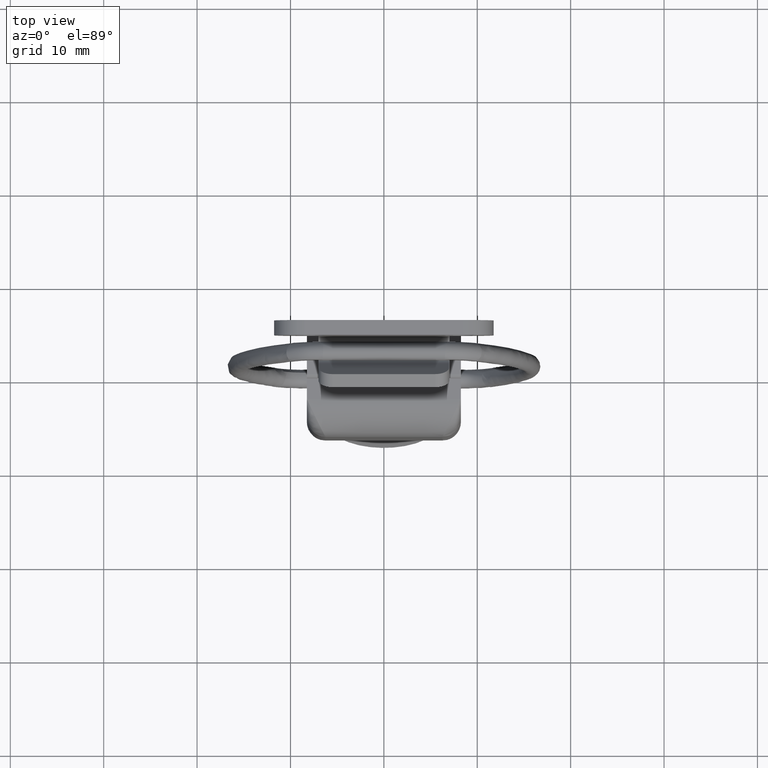
[diagram: clean part render]
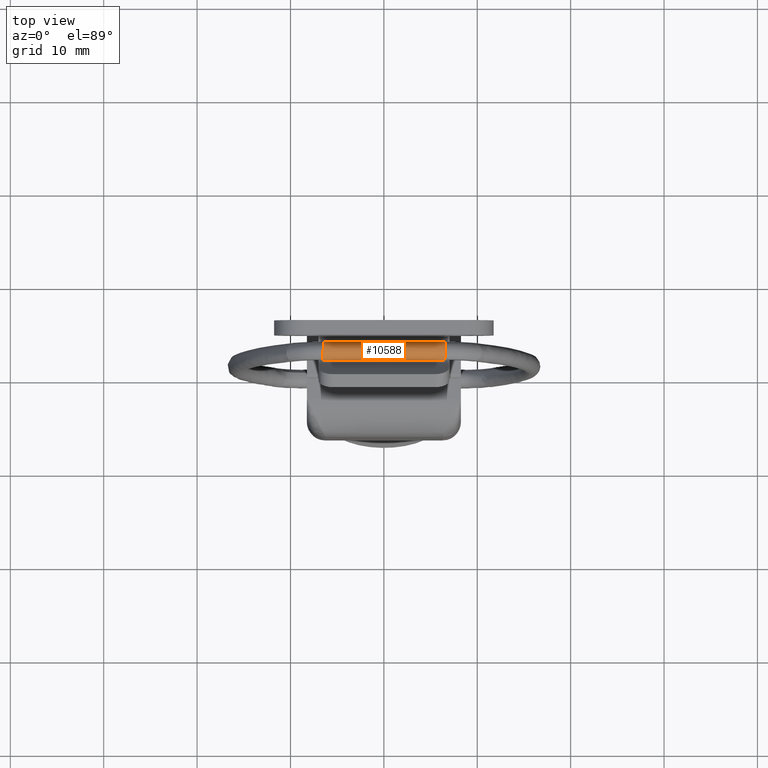
[diagram: same view with one face highlighted and labeled with its STEP entity id]
A machine part, top view. The second image highlights one B-rep face of the part: STEP entity #10588.
In plain terms, the highlighted face is a freeform B-spline surface patch.
Its self-contained STEP definition (entity closure, byte-faithful):
#10235=CARTESIAN_POINT('',(-6.553703238216057,1.526267808194171,36.312757689172088));
#10236=VERTEX_POINT('',#10235);
#10244=CARTESIAN_POINT('',(-6.445570692218129,3.390552194198468,35.645398781179949));
#10245=VERTEX_POINT('',#10244);
#10246=CARTESIAN_POINT('',(-6.553703238216057,1.526267808194171,36.312757689172088));
#10247=CARTESIAN_POINT('',(-6.550683797736747,1.592633670253155,36.432042125222843));
#10248=CARTESIAN_POINT('',(-6.546211833409953,1.683539665240021,36.537519009879702));
#10249=CARTESIAN_POINT('',(-6.529620459968619,2.004663524047265,36.773223679049849));
#10250=CARTESIAN_POINT('',(-6.514614076888280,2.279281060557900,36.833835263691242));
#10251=CARTESIAN_POINT('',(-6.485231205158300,2.795265156415775,36.743117991943393));
#10252=CARTESIAN_POINT('',(-6.471179081154260,3.031245107303830,36.595773516590647));
#10253=CARTESIAN_POINT('',(-6.451121509023050,3.346276131130635,36.175332931306500));
#10254=CARTESIAN_POINT('',(-6.445345472882390,3.421682590761250,35.906646717700447));
#10255=CARTESIAN_POINT('',(-6.445570692218129,3.390552194198468,35.645398781179949));
#10256=B_SPLINE_CURVE_WITH_KNOTS('',3,(#10246,#10247,#10248,#10249,#10250,#10251,#10252,#10253,#10254,#10255),.UNSPECIFIED.,.F.,.U.,(4,2,2,2,4),(0.560000082227091,0.625000000000000,0.750000000000000,0.875000000000000,1.0),.UNSPECIFIED.);
#10257=EDGE_CURVE('',#10236,#10245,#10256,.T.);
#10322=CARTESIAN_POINT('',(-6.464403998994134,2.983231346998704,34.965250434586437));
#10323=VERTEX_POINT('',#10322);
#10333=CARTESIAN_POINT('',(-6.558156316100890,1.409611163137476,35.955815357059983));
#10334=VERTEX_POINT('',#10333);
#10335=CARTESIAN_POINT('',(-6.464403998994134,2.983231346998704,34.965250434586437));
#10336=CARTESIAN_POINT('',(-6.475194078490431,2.775502591501208,34.822678425934292));
#10337=CARTESIAN_POINT('',(-6.489642367795588,2.511471045122991,34.767914881579493));
#10338=CARTESIAN_POINT('',(-6.518506790173699,2.004567382314215,34.856801054713550));
#10339=CARTESIAN_POINT('',(-6.532555168417390,1.768680755197475,35.004399476588297));
#10340=CARTESIAN_POINT('',(-6.552592457994390,1.453960416756810,35.424338956953051));
#10341=CARTESIAN_POINT('',(-6.558398800577360,1.378266951194680,35.695482188418602));
#10342=CARTESIAN_POINT('',(-6.558156316100890,1.409611163137476,35.955815357059983));
#10343=B_SPLINE_CURVE_WITH_KNOTS('',3,(#10335,#10336,#10337,#10338,#10339,#10340,#10341,#10342),.UNSPECIFIED.,.F.,.U.,(4,2,2,4),(0.130000136707073,0.250000000000000,0.375000000000000,0.500000000000000),.UNSPECIFIED.);
#10344=EDGE_CURVE('',#10323,#10334,#10343,.T.);
#10346=CARTESIAN_POINT('',(-6.558156316100890,1.409611163137476,35.955815357059983));
#10347=CARTESIAN_POINT('',(-6.558039923392673,1.424656405488765,36.080775449259349));
#10348=CARTESIAN_POINT('',(-6.556490410370343,1.465007093173165,36.202649124066212));
#10349=CARTESIAN_POINT('',(-6.553703238216057,1.526267808194171,36.312757689172088));
#10350=B_SPLINE_CURVE_WITH_KNOTS('',3,(#10346,#10347,#10348,#10349),.UNSPECIFIED.,.F.,.U.,(4,4),(0.500000000000000,0.560000082227090),.UNSPECIFIED.);
#10351=EDGE_CURVE('',#10334,#10236,#10350,.T.);
#10357=CARTESIAN_POINT('',(6.615853702042744,2.983231701973269,34.965250678218993));
#10358=CARTESIAN_POINT('',(6.605063637027719,2.775503193084913,34.822678550710620));
#10359=CARTESIAN_POINT('',(6.590615330908814,2.511471327969338,34.767914831982040));
#10360=CARTESIAN_POINT('',(6.561750892424690,2.004567382314215,34.856801054713550));
#10361=CARTESIAN_POINT('',(6.547702514181001,1.768680755197475,35.004399476588297));
#10362=CARTESIAN_POINT('',(6.527665224604000,1.453960416756810,35.424338956953051));
#10363=CARTESIAN_POINT('',(6.521858882021030,1.378266951194680,35.695482188418602));
#10364=CARTESIAN_POINT('',(6.522343850973980,1.440955375080272,36.216148525701357));
#10365=CARTESIAN_POINT('',(6.528806458653910,1.582131948019090,36.463085822237900));
#10366=CARTESIAN_POINT('',(6.550637222629770,2.004663524047265,36.773223679049849));
#10367=CARTESIAN_POINT('',(6.565643605710120,2.279281060557900,36.833835263691242));
#10368=CARTESIAN_POINT('',(6.595026477440091,2.795265156415775,36.743117991943393));
#10369=CARTESIAN_POINT('',(6.609078601444130,3.031245107303830,36.595773516590647));
#10370=CARTESIAN_POINT('',(6.629136173575340,3.346276131130635,36.175332931306500));
#10371=CARTESIAN_POINT('',(6.634912209716010,3.421682590761250,35.906646717700447));
#10372=CARTESIAN_POINT('',(6.634686990380264,3.390552194198468,35.645398781179949));
#10373=CARTESIAN_POINT('',(5.526235893836257,2.984001384234857,34.976731720995453));
#10374=CARTESIAN_POINT('',(5.515416881525048,2.776180052396942,34.832774989371160));
#10375=CARTESIAN_POINT('',(5.500932826129022,2.512004005278976,34.775860563559263));
#10376=CARTESIAN_POINT('',(5.472020521712540,2.004796002998290,34.860211291657002));
#10377=CARTESIAN_POINT('',(5.457962778564320,1.768762041328815,35.005611981348949));
#10378=CARTESIAN_POINT('',(5.437926899621630,1.453844291878682,35.422606758753048));
#10379=CARTESIAN_POINT('',(5.432123447218450,1.378100889671530,35.693005104952803));
#10380=CARTESIAN_POINT('',(5.432607424933369,1.440804565466560,36.213898949562100));
#10381=CARTESIAN_POINT('',(5.439067073802730,1.582040747883880,36.461725417783349));
#10382=CARTESIAN_POINT('',(5.460897824923920,2.004754380893475,36.774578948229447));
#10383=CARTESIAN_POINT('',(5.475911698487879,2.279492663819015,36.836991660353597));
#10384=CARTESIAN_POINT('',(5.505327322651160,2.795717328027860,36.749862853303952));
#10385=CARTESIAN_POINT('',(5.519405302516191,3.031820008672685,36.604349090006302));
#10386=CARTESIAN_POINT('',(5.539518368537980,3.347051395600270,36.186897243011352));
#10387=CARTESIAN_POINT('',(5.545319868346590,3.422534152202085,35.919349121472052));
#10388=CARTESIAN_POINT('',(5.545104324908975,3.391430601365750,35.658501631967951));
#10389=CARTESIAN_POINT('',(4.436161233417692,2.983231701973269,34.965250678218993));
#10390=CARTESIAN_POINT('',(4.425371168402669,2.775503193084913,34.822678550710620));
#10391=CARTESIAN_POINT('',(4.410922862283769,2.511471327969338,34.767914831982040));
#10392=CARTESIAN_POINT('',(4.382058423799641,2.004567382314215,34.856801054713550));
#10393=CARTESIAN_POINT('',(4.368010045555950,1.768680755197475,35.004399476588297));
#10394=CARTESIAN_POINT('',(4.347972755978950,1.453960416756810,35.424338956953051));
#10395=CARTESIAN_POINT('',(4.342166413395985,1.378266951194680,35.695482188418602));
#10396=CARTESIAN_POINT('',(4.342651382348924,1.440955375080272,36.216148525701357));
#10397=CARTESIAN_POINT('',(4.349113990028860,1.582131948019090,36.463085822237900));
#10398=CARTESIAN_POINT('',(4.370944754004721,2.004663524047265,36.773223679049849));
#10399=CARTESIAN_POINT('',(4.385951137085066,2.279281060557900,36.833835263691242));
#10400=CARTESIAN_POINT('',(4.415334008815040,2.795265156415775,36.743117991943393));
#10401=CARTESIAN_POINT('',(4.429386132819080,3.031245107303830,36.595773516590647));
#10402=CARTESIAN_POINT('',(4.449443704950290,3.346276131130635,36.175332931306500));
#10403=CARTESIAN_POINT('',(4.455219741090955,3.421682590761250,35.906646717700447));
#10404=CARTESIAN_POINT('',(4.454994521755215,3.390552194198468,35.645398781179949));
#10405=CARTESIAN_POINT('',(2.256048190679772,2.983231701973269,34.965250678218993));
#10406=CARTESIAN_POINT('',(2.245258125664750,2.775503193084913,34.822678550710620));
#10407=CARTESIAN_POINT('',(2.230809819545850,2.511471327969338,34.767914831982040));
#10408=CARTESIAN_POINT('',(2.201945381061720,2.004567382314215,34.856801054713550));
#10409=CARTESIAN_POINT('',(2.187897002818030,1.768680755197475,35.004399476588297));
#10410=CARTESIAN_POINT('',(2.167859713241030,1.453960416756810,35.424338956953051));
#10411=CARTESIAN_POINT('',(2.162053370658065,1.378266951194680,35.695482188418602));
#10412=CARTESIAN_POINT('',(2.162538339611005,1.440955375080272,36.216148525701357));
#10413=CARTESIAN_POINT('',(2.169000947290940,1.582131948019090,36.463085822237900));
#10414=CARTESIAN_POINT('',(2.190831711266800,2.004663524047265,36.773223679049849));
#10415=CARTESIAN_POINT('',(2.205838094347145,2.279281060557900,36.833835263691242));
#10416=CARTESIAN_POINT('',(2.235220966077120,2.795265156415775,36.743117991943393));
#10417=CARTESIAN_POINT('',(2.249273090081160,3.031245107303830,36.595773516590647));
#10418=CARTESIAN_POINT('',(2.269330662212370,3.346276131130635,36.175332931306500));
#10419=CARTESIAN_POINT('',(2.275106698353035,3.421682590761250,35.906646717700447));
#10420=CARTESIAN_POINT('',(2.274881479017295,3.390552194198468,35.645398781179949));
#10421=CARTESIAN_POINT('',(1.165886525767958,2.983231701973269,34.965250678218993));
#10422=CARTESIAN_POINT('',(1.155096460752935,2.775503193084913,34.822678550710620));
#10423=CARTESIAN_POINT('',(1.140648154634035,2.511471327969338,34.767914831982040));
#10424=CARTESIAN_POINT('',(1.111783716149906,2.004567382314215,34.856801054713550));
#10425=CARTESIAN_POINT('',(1.097735337906216,1.768680755197475,35.004399476588297));
#10426=CARTESIAN_POINT('',(1.077698048329216,1.453960416756810,35.424338956953051));
#10427=CARTESIAN_POINT('',(1.071891705746248,1.378266951194680,35.695482188418602));
#10428=CARTESIAN_POINT('',(1.072376674699190,1.440955375080272,36.216148525701357));
#10429=CARTESIAN_POINT('',(1.078839282379122,1.582131948019090,36.463085822237900));
#10430=CARTESIAN_POINT('',(1.100670046354986,2.004663524047265,36.773223679049849));
#10431=CARTESIAN_POINT('',(1.115676429435330,2.279281060557900,36.833835263691242));
#10432=CARTESIAN_POINT('',(1.145059301165304,2.795265156415775,36.743117991943393));
#10433=CARTESIAN_POINT('',(1.159111425169344,3.031245107303830,36.595773516590647));
#10434=CARTESIAN_POINT('',(1.179168997300554,3.346276131130635,36.175332931306500));
#10435=CARTESIAN_POINT('',(1.184945033441220,3.421682590761250,35.906646717700447));
#10436=CARTESIAN_POINT('',(1.184719814105480,3.390552194198468,35.645398781179949));
#10437=CARTESIAN_POINT('',(-1.014436804055647,2.983231701973269,34.965250678218993));
#10438=CARTESIAN_POINT('',(-1.025226869070671,2.775503193084913,34.822678550710620));
#10439=CARTESIAN_POINT('',(-1.039675175189572,2.511471327969338,34.767914831982040));
#10440=CARTESIAN_POINT('',(-1.068539613673700,2.004567382314215,34.856801054713550));
#10441=CARTESIAN_POINT('',(-1.082587991917390,1.768680755197475,35.004399476588297));
#10442=CARTESIAN_POINT('',(-1.102625281494390,1.453960416756810,35.424338956953051));
#10443=CARTESIAN_POINT('',(-1.108431624077358,1.378266951194680,35.695482188418602));
#10444=CARTESIAN_POINT('',(-1.107946655124414,1.440955375080272,36.216148525701357));
#10445=CARTESIAN_POINT('',(-1.101484047444482,1.582131948019090,36.463085822237900));
#10446=CARTESIAN_POINT('',(-1.079653283468620,2.004663524047265,36.773223679049849));
#10447=CARTESIAN_POINT('',(-1.064646900388274,2.279281060557900,36.833835263691242));
#10448=CARTESIAN_POINT('',(-1.035264028658302,2.795265156415775,36.743117991943393));
#10449=CARTESIAN_POINT('',(-1.021211904654260,3.031245107303830,36.595773516590647));
#10450=CARTESIAN_POINT('',(-1.001154332523052,3.346276131130635,36.175332931306500));
#10451=CARTESIAN_POINT('',(-0.995378296382384,3.421682590761250,35.906646717700447));
#10452=CARTESIAN_POINT('',(-0.995603515718126,3.390552194198468,35.645398781179949));
#10453=CARTESIAN_POINT('',(-2.104598468986338,2.983231701973269,34.965250678218993));
#10454=CARTESIAN_POINT('',(-2.115388534001360,2.775503193084913,34.822678550710620));
#10455=CARTESIAN_POINT('',(-2.129836840120261,2.511471327969338,34.767914831982040));
#10456=CARTESIAN_POINT('',(-2.158701278604390,2.004567382314215,34.856801054713550));
#10457=CARTESIAN_POINT('',(-2.172749656848080,1.768680755197475,35.004399476588297));
#10458=CARTESIAN_POINT('',(-2.192786946425080,1.453960416756810,35.424338956953051));
#10459=CARTESIAN_POINT('',(-2.198593289008050,1.378266951194680,35.695482188418602));
#10460=CARTESIAN_POINT('',(-2.198108320055105,1.440955375080272,36.216148525701357));
#10461=CARTESIAN_POINT('',(-2.191645712375175,1.582131948019090,36.463085822237900));
#10462=CARTESIAN_POINT('',(-2.169814948399310,2.004663524047265,36.773223679049849));
#10463=CARTESIAN_POINT('',(-2.154808565318965,2.279281060557900,36.833835263691242));
#10464=CARTESIAN_POINT('',(-2.125425693588995,2.795265156415775,36.743117991943393));
#10465=CARTESIAN_POINT('',(-2.111373569584950,3.031245107303830,36.595773516590647));
#10466=CARTESIAN_POINT('',(-2.091315997453745,3.346276131130635,36.175332931306500));
#10467=CARTESIAN_POINT('',(-2.085539961313075,3.421682590761250,35.906646717700447));
#10468=CARTESIAN_POINT('',(-2.085765180648818,3.390552194198468,35.645398781179949));
#10469=CARTESIAN_POINT('',(-4.284711511798998,2.983231701973269,34.965250678218993));
#10470=CARTESIAN_POINT('',(-4.295501576814021,2.775503193084913,34.822678550710620));
#10471=CARTESIAN_POINT('',(-4.309949882932926,2.511471327969338,34.767914831982040));
#10472=CARTESIAN_POINT('',(-4.338814321417050,2.004567382314215,34.856801054713550));
#10473=CARTESIAN_POINT('',(-4.352862699660740,1.768680755197475,35.004399476588297));
#10474=CARTESIAN_POINT('',(-4.372899989237740,1.453960416756810,35.424338956953051));
#10475=CARTESIAN_POINT('',(-4.378706331820711,1.378266951194680,35.695482188418602));
#10476=CARTESIAN_POINT('',(-4.378221362867765,1.440955375080272,36.216148525701357));
#10477=CARTESIAN_POINT('',(-4.371758755187836,1.582131948019090,36.463085822237900));
#10478=CARTESIAN_POINT('',(-4.349927991211970,2.004663524047265,36.773223679049849));
#10479=CARTESIAN_POINT('',(-4.334921608131625,2.279281060557900,36.833835263691242));
#10480=CARTESIAN_POINT('',(-4.305538736401656,2.795265156415775,36.743117991943393));
#10481=CARTESIAN_POINT('',(-4.291486612397615,3.031245107303830,36.595773516590647));
#10482=CARTESIAN_POINT('',(-4.271429040266405,3.346276131130635,36.175332931306500));
#10483=CARTESIAN_POINT('',(-4.265653004125736,3.421682590761250,35.906646717700447));
#10484=CARTESIAN_POINT('',(-4.265878223461478,3.390552194198468,35.645398781179949));
#10485=CARTESIAN_POINT('',(-5.374783613460478,2.982470137975475,34.953890714697863));
#10486=CARTESIAN_POINT('',(-5.385545109131371,2.774834232623148,34.812699918011909));
#10487=CARTESIAN_POINT('',(-5.399958157117082,2.510946442117083,34.760085304230813));
#10488=CARTESIAN_POINT('',(-5.428775693825150,2.004346635103430,34.853508245130762));
#10489=CARTESIAN_POINT('',(-5.442815177197250,1.768607533768320,35.003307252018750));
#10490=CARTESIAN_POINT('',(-5.462854557845731,1.454085144330026,35.426199461311242));
#10491=CARTESIAN_POINT('',(-5.468663990360150,1.378441943803772,35.698092477105099));
#10492=CARTESIAN_POINT('',(-5.468178012805040,1.441115702288870,36.218540056810753));
#10493=CARTESIAN_POINT('',(-5.461712224392490,1.582232926286880,36.464592068448887));
#10494=CARTESIAN_POINT('',(-5.439880706749801,2.004582766358145,36.772019040792848));
#10495=CARTESIAN_POINT('',(-5.424881308074220,2.279079627854900,36.830830563140907));
#10496=CARTESIAN_POINT('',(-5.395530194353441,2.794823104363280,36.736524065878598));
#10497=CARTESIAN_POINT('',(-5.381503444801060,3.030680204039975,36.587347066566650));
#10498=CARTESIAN_POINT('',(-5.361500667476860,3.345510473204540,36.163911901545447));
#10499=CARTESIAN_POINT('',(-5.355749890663589,3.420840356590940,35.894083429572198));
#10500=CARTESIAN_POINT('',(-5.355984796233220,3.389682806718298,35.632430457395103));
#10501=CARTESIAN_POINT('',(-6.464403980555650,2.983231701973269,34.965250678218993));
#10502=CARTESIAN_POINT('',(-6.475194045570671,2.775503193084913,34.822678550710620));
#10503=CARTESIAN_POINT('',(-6.489642351689575,2.511471327969338,34.767914831982040));
#10504=CARTESIAN_POINT('',(-6.518506790173699,2.004567382314215,34.856801054713550));
#10505=CARTESIAN_POINT('',(-6.532555168417390,1.768680755197475,35.004399476588297));
#10506=CARTESIAN_POINT('',(-6.552592457994390,1.453960416756810,35.424338956953051));
#10507=CARTESIAN_POINT('',(-6.558398800577360,1.378266951194680,35.695482188418602));
#10508=CARTESIAN_POINT('',(-6.557913831624420,1.440955375080272,36.216148525701357));
#10509=CARTESIAN_POINT('',(-6.551451223944480,1.582131948019090,36.463085822237900));
#10510=CARTESIAN_POINT('',(-6.529620459968619,2.004663524047265,36.773223679049849));
#10511=CARTESIAN_POINT('',(-6.514614076888280,2.279281060557900,36.833835263691242));
#10512=CARTESIAN_POINT('',(-6.485231205158300,2.795265156415775,36.743117991943393));
#10513=CARTESIAN_POINT('',(-6.471179081154260,3.031245107303830,36.595773516590647));
#10514=CARTESIAN_POINT('',(-6.451121509023050,3.346276131130635,36.175332931306500));
#10515=CARTESIAN_POINT('',(-6.445345472882390,3.421682590761250,35.906646717700447));
#10516=CARTESIAN_POINT('',(-6.445570692218129,3.390552194198468,35.645398781179949));
#10517=B_SPLINE_SURFACE_WITH_KNOTS('',3,3,((#10357,#10373,#10389,#10405,#10421,#10437,#10453,#10469,#10485,#10501),(#10358,#10374,#10390,#10406,#10422,#10438,#10454,#10470,#10486,#10502),(#10359,#10375,#10391,#10407,#10423,#10439,#10455,#10471,#10487,#10503),(#10360,#10376,#10392,#10408,#10424,#10440,#10456,#10472,#10488,#10504),(#10361,#10377,#10393,#10409,#10425,#10441,#10457,#10473,#10489,#10505),(#10362,#10378,#10394,#10410,#10426,#10442,#10458,#10474,#10490,#10506),(#10363,#10379,#10395,#10411,#10427,#10443,#10459,#10475,#10491,#10507),(#10364,#10380,#10396,#10412,#10428,#10444,#10460,#10476,#10492,#10508),(#10365,#10381,#10397,#10413,#10429,#10445,#10461,#10477,#10493,#10509),(#10366,#10382,#10398,#10414,#10430,#10446,#10462,#10478,#10494,#10510),(#10367,#10383,#10399,#10415,#10431,#10447,#10463,#10479,#10495,#10511),(#10368,#10384,#10400,#10416,#10432,#10448,#10464,#10480,#10496,#10512),(#10369,#10385,#10401,#10417,#10433,#10449,#10465,#10481,#10497,#10513),(#10370,#10386,#10402,#10418,#10434,#10450,#10466,#10482,#10498,#10514),(#10371,#10387,#10403,#10419,#10435,#10451,#10467,#10483,#10499,#10515),(#10372,#10388,#10404,#10420,#10436,#10452,#10468,#10484,#10500,#10516)),.UNSPECIFIED.,.F.,.F.,.U.,(4,2,2,2,2,2,2,4),(4,2,2,2,4),(0.0,0.758236126466220,1.548065424868533,2.337894723270846,3.127724021673159,3.917553320075472,4.707382618477785,5.497211916880097),(0.0,3.270449946925546,6.540899893850999,9.811349840776430,13.081799787701881),.UNSPECIFIED.);
#10518=ORIENTED_EDGE('',*,*,#10344,.F.);
#10519=CARTESIAN_POINT('',(6.615853682822957,2.983231331956641,34.965250424262848));
#10520=VERTEX_POINT('',#10519);
#10521=CARTESIAN_POINT('',(6.615853682822957,2.983231331956641,34.965250424262848));
#10522=CARTESIAN_POINT('',(5.526235893836256,2.984001384234856,34.976731720995453));
#10523=CARTESIAN_POINT('',(4.436161233417692,2.983231701973269,34.965250678218993));
#10524=CARTESIAN_POINT('',(2.256048190679772,2.983231701973269,34.965250678218993));
#10525=CARTESIAN_POINT('',(1.165886525767958,2.983231701973269,34.965250678218993));
#10526=CARTESIAN_POINT('',(-1.014436804055648,2.983231701973269,34.965250678218993));
#10527=CARTESIAN_POINT('',(-2.104598468986338,2.983231701973269,34.965250678218993));
#10528=CARTESIAN_POINT('',(-4.284711511798998,2.983231701973269,34.965250678218993));
#10529=CARTESIAN_POINT('',(-5.374783613460478,2.982470137975475,34.953890714697863));
#10530=CARTESIAN_POINT('',(-6.464403998994134,2.983231346998704,34.965250434586437));
#10531=B_SPLINE_CURVE_WITH_KNOTS('',3,(#10521,#10522,#10523,#10524,#10525,#10526,#10527,#10528,#10529,#10530),.UNSPECIFIED.,.F.,.U.,(4,2,2,2,4),(0.479031577897367,0.512169674757173,0.545307771616978,0.578445868476783,0.611583965336588),.UNSPECIFIED.);
#10532=EDGE_CURVE('',#10520,#10323,#10531,.T.);
#10533=ORIENTED_EDGE('',*,*,#10532,.F.);
#10534=CARTESIAN_POINT('',(6.522101366497510,1.409611163136494,35.955815357059983));
#10535=VERTEX_POINT('',#10534);
#10536=CARTESIAN_POINT('',(6.615853682822957,2.983231331956641,34.965250424262848));
#10537=CARTESIAN_POINT('',(6.605063602713038,2.775502566008931,34.822678420647073));
#10538=CARTESIAN_POINT('',(6.590615314120342,2.511471033136774,34.767914883681122));
#10539=CARTESIAN_POINT('',(6.561750892424700,2.004567382313230,34.856801054713550));
#10540=CARTESIAN_POINT('',(6.547702514181010,1.768680755196495,35.004399476588297));
#10541=CARTESIAN_POINT('',(6.527665224604010,1.453960416755826,35.424338956953051));
#10542=CARTESIAN_POINT('',(6.521858882021040,1.378266951193698,35.695482188418602));
#10543=CARTESIAN_POINT('',(6.522101366497510,1.409611163136494,35.955815357059983));
#10544=B_SPLINE_CURVE_WITH_KNOTS('',3,(#10536,#10537,#10538,#10539,#10540,#10541,#10542,#10543),.UNSPECIFIED.,.F.,.U.,(4,2,2,4),(0.130000142499851,0.250000000000000,0.375000000000000,0.500000000000000),.UNSPECIFIED.);
#10545=EDGE_CURVE('',#10520,#10535,#10544,.T.);
#10546=ORIENTED_EDGE('',*,*,#10545,.T.);
#10547=CARTESIAN_POINT('',(6.526554438652877,1.526267682262221,36.312757462826603));
#10548=VERTEX_POINT('',#10547);
#10549=CARTESIAN_POINT('',(6.522101366497510,1.409611163136494,35.955815357059983));
#10550=CARTESIAN_POINT('',(6.522217759046217,1.424656384869252,36.080775278009639));
#10551=CARTESIAN_POINT('',(6.523767267981045,1.465006982576220,36.202648790026252));
#10552=CARTESIAN_POINT('',(6.526554438652877,1.526267682262221,36.312757462826603));
#10553=B_SPLINE_CURVE_WITH_KNOTS('',3,(#10549,#10550,#10551,#10552),.UNSPECIFIED.,.F.,.U.,(4,4),(0.500000000000000,0.560000000000862),.UNSPECIFIED.);
#10554=EDGE_CURVE('',#10535,#10548,#10553,.T.);
#10555=ORIENTED_EDGE('',*,*,#10554,.T.);
#10556=CARTESIAN_POINT('',(6.634686990380265,3.390552194198222,35.645398781179949));
#10557=VERTEX_POINT('',#10556);
#10558=CARTESIAN_POINT('',(6.526554438652877,1.526267682262221,36.312757462826603));
#10559=CARTESIAN_POINT('',(6.529573873547403,1.592633440256304,36.432041858361963));
#10560=CARTESIAN_POINT('',(6.534045842008202,1.683539526266322,36.537518907873839));
#10561=CARTESIAN_POINT('',(6.550637222629780,2.004663524046280,36.773223679049849));
#10562=CARTESIAN_POINT('',(6.565643605710120,2.279281060556920,36.833835263691242));
#10563=CARTESIAN_POINT('',(6.595026477440100,2.795265156414795,36.743117991943393));
#10564=CARTESIAN_POINT('',(6.609078601444140,3.031245107302845,36.595773516590647));
#10565=CARTESIAN_POINT('',(6.629136173575351,3.346276131129655,36.175332931306500));
#10566=CARTESIAN_POINT('',(6.634912209716010,3.421682590760270,35.906646717700447));
#10567=CARTESIAN_POINT('',(6.634686990380265,3.390552194198222,35.645398781179949));
#10568=B_SPLINE_CURVE_WITH_KNOTS('',3,(#10558,#10559,#10560,#10561,#10562,#10563,#10564,#10565,#10566,#10567),.UNSPECIFIED.,.F.,.U.,(4,2,2,2,4),(0.560000000000861,0.625000000000000,0.750000000000000,0.875000000000000,1.0),.UNSPECIFIED.);
#10569=EDGE_CURVE('',#10548,#10557,#10568,.T.);
#10570=ORIENTED_EDGE('',*,*,#10569,.T.);
#10571=CARTESIAN_POINT('',(6.634686990380265,3.390552194198222,35.645398781179949));
#10572=CARTESIAN_POINT('',(5.545104324908975,3.391430601365750,35.658501631967951));
#10573=CARTESIAN_POINT('',(4.454994521755215,3.390552194198468,35.645398781179949));
#10574=CARTESIAN_POINT('',(2.274881479017295,3.390552194198468,35.645398781179949));
#10575=CARTESIAN_POINT('',(1.184719814105480,3.390552194198468,35.645398781179949));
#10576=CARTESIAN_POINT('',(-0.995603515718126,3.390552194198468,35.645398781179949));
#10577=CARTESIAN_POINT('',(-2.085765180648818,3.390552194198468,35.645398781179949));
#10578=CARTESIAN_POINT('',(-4.265878223461478,3.390552194198468,35.645398781179949));
#10579=CARTESIAN_POINT('',(-5.355984796233220,3.389682806718298,35.632430457395103));
#10580=CARTESIAN_POINT('',(-6.445570692218129,3.390552194198468,35.645398781179949));
#10581=B_SPLINE_CURVE_WITH_KNOTS('',3,(#10571,#10572,#10573,#10574,#10575,#10576,#10577,#10578,#10579,#10580),.UNSPECIFIED.,.F.,.U.,(4,2,2,2,4),(0.479031577897367,0.512169674757173,0.545307771616978,0.578445868476783,0.611583965336588),.UNSPECIFIED.);
#10582=EDGE_CURVE('',#10557,#10245,#10581,.T.);
#10583=ORIENTED_EDGE('',*,*,#10582,.T.);
#10584=ORIENTED_EDGE('',*,*,#10257,.F.);
#10585=ORIENTED_EDGE('',*,*,#10351,.F.);
#10586=EDGE_LOOP('',(#10518,#10533,#10546,#10555,#10570,#10583,#10584,#10585));
#10587=FACE_OUTER_BOUND('',#10586,.T.);
#10588=ADVANCED_FACE('',(#10587),#10517,.T.);